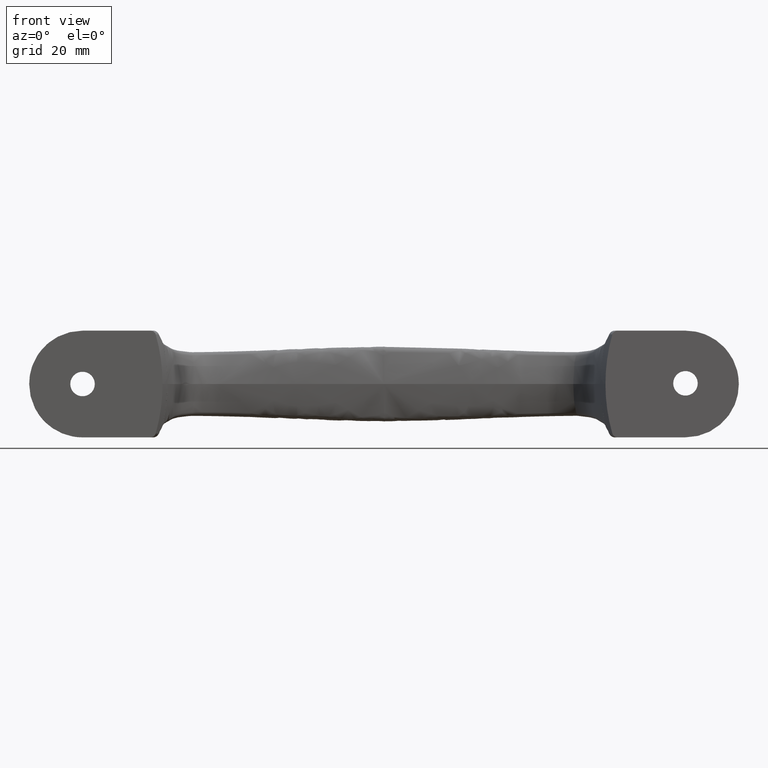
[diagram: clean part render]
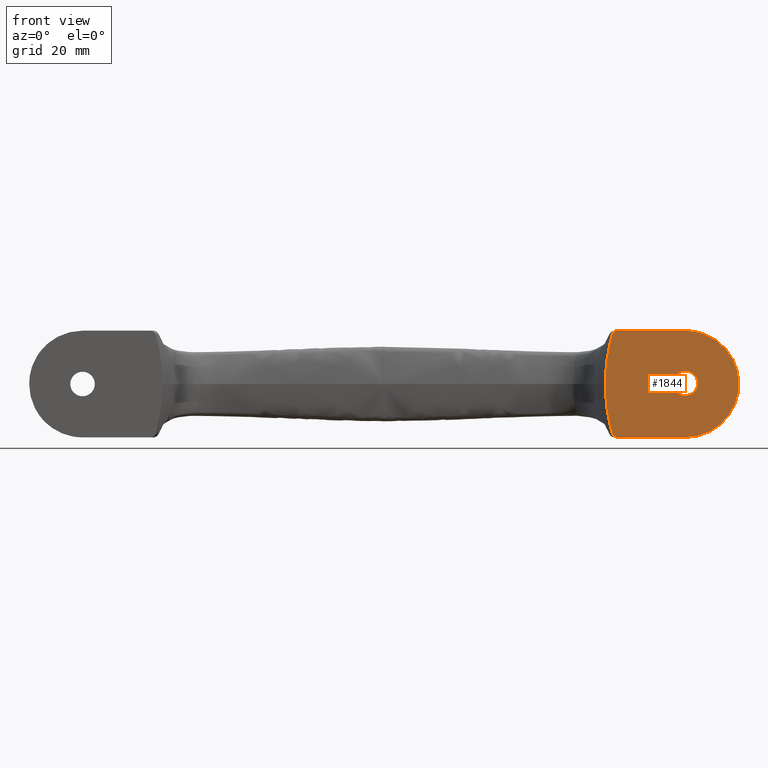
[diagram: same view with one face highlighted and labeled with its STEP entity id]
A machine part, front view. The second image highlights one B-rep face of the part: STEP entity #1844.
In plain terms, the highlighted planar face has unit normal (0, -1, 0).
Its self-contained STEP definition (entity closure, byte-faithful):
#32=ELLIPSE('',#1891,29.5615578210056,25.5190537273212);
#33=ELLIPSE('',#1893,29.5615576358674,25.519053307339);
#45=PLANE('',#1895);
#93=LINE('',#18804,#145);
#94=LINE('',#18830,#146);
#145=VECTOR('',#2024,12.7251197581603);
#146=VECTOR('',#2025,12.7251197063668);
#356=B_SPLINE_CURVE_WITH_KNOTS('',3,(#18792,#18793,#18794,#18795,#18796,
#18797,#18798,#18799,#18800,#18801),.UNSPECIFIED.,.F.,.F.,(4,2,2,2,4),(5.14857552673089E-8,
0.0330055795134464,0.0662812288358875,0.0991402675598314,0.145985234129523),
 .UNSPECIFIED.);
#357=B_SPLINE_CURVE_WITH_KNOTS('',3,(#18806,#18807,#18808,#18809,#18810,
#18811,#18812,#18813,#18814,#18815,#18816),.UNSPECIFIED.,.F.,.F.,(4,1,1,
1,1,1,1,1,4),(0.,0.214285714285714,0.32142857142857,0.428571428571431,0.535714285714287,
0.642857142857144,0.75,0.857142857142858,1.),.UNSPECIFIED.);
#358=B_SPLINE_CURVE_WITH_KNOTS('',3,(#18818,#18819,#18820,#18821,#18822,
#18823,#18824,#18825,#18826,#18827,#18828),.UNSPECIFIED.,.F.,.F.,(4,1,1,
1,1,1,1,1,4),(-1.,-0.857142857142858,-0.75,-0.642857142857144,-0.535714285714287,
-0.428571428571431,-0.32142857142857,-0.214285714285714,0.),
 .UNSPECIFIED.);
#359=B_SPLINE_CURVE_WITH_KNOTS('',3,(#18831,#18832,#18833,#18834,#18835,
#18836,#18837,#18838,#18839,#18840),.UNSPECIFIED.,.F.,.F.,(4,2,2,2,4),(-0.145974817483794,
-0.0992012663618286,-0.0663909209644217,-0.0330590076231549,-3.23906693688869E-8),
 .UNSPECIFIED.);
#458=FACE_BOUND('',#648,.T.);
#544=FACE_OUTER_BOUND('',#647,.T.);
#647=EDGE_LOOP('',(#1699,#1700,#1701,#1702,#1703,#1704,#1705,#1706));
#648=EDGE_LOOP('',(#1707));
#664=CIRCLE('',#1866,2.3);
#672=VERTEX_POINT('',#2052);
#849=VERTEX_POINT('',#18072);
#850=VERTEX_POINT('',#18074);
#853=VERTEX_POINT('',#18284);
#861=VERTEX_POINT('',#18790);
#862=VERTEX_POINT('',#18803);
#863=VERTEX_POINT('',#18805);
#864=VERTEX_POINT('',#18817);
#865=VERTEX_POINT('',#18829);
#877=EDGE_CURVE('',#672,#672,#664,.T.);
#1125=EDGE_CURVE('',#850,#849,#32,.T.);
#1131=EDGE_CURVE('',#850,#853,#33,.T.);
#1146=EDGE_CURVE('',#849,#861,#356,.T.);
#1147=EDGE_CURVE('',#861,#862,#93,.T.);
#1148=EDGE_CURVE('',#862,#863,#357,.T.);
#1149=EDGE_CURVE('',#863,#864,#358,.T.);
#1150=EDGE_CURVE('',#864,#865,#94,.T.);
#1151=EDGE_CURVE('',#865,#853,#359,.T.);
#1699=ORIENTED_EDGE('',*,*,#1147,.T.);
#1700=ORIENTED_EDGE('',*,*,#1148,.T.);
#1701=ORIENTED_EDGE('',*,*,#1149,.T.);
#1702=ORIENTED_EDGE('',*,*,#1150,.T.);
#1703=ORIENTED_EDGE('',*,*,#1151,.T.);
#1704=ORIENTED_EDGE('',*,*,#1131,.F.);
#1705=ORIENTED_EDGE('',*,*,#1125,.T.);
#1706=ORIENTED_EDGE('',*,*,#1146,.T.);
#1707=ORIENTED_EDGE('',*,*,#877,.T.);
#1844=ADVANCED_FACE('',(#544,#458),#45,.T.);
#1866=AXIS2_PLACEMENT_3D('',#2053,#1919,#1920);
#1891=AXIS2_PLACEMENT_3D('',#18075,#2006,#2007);
#1893=AXIS2_PLACEMENT_3D('',#18285,#2014,#2015);
#1895=AXIS2_PLACEMENT_3D('',#18802,#2022,#2023);
#1919=DIRECTION('center_axis',(0.,1.,0.));
#1920=DIRECTION('ref_axis',(0.999999395314834,0.,0.00109971358366082));
#2006=DIRECTION('center_axis',(2.35911500811215E-7,-0.999999999999972,9.96696049563444E-9));
#2007=DIRECTION('ref_axis',(0.166289917660092,2.94015144835846E-8,-0.986076905360124));
#2014=DIRECTION('center_axis',(-2.47996674972633E-7,0.999999999999969,1.02254181495694E-8));
#2015=DIRECTION('ref_axis',(0.166289926806546,3.11563002602984E-8,0.986076903817685));
#2022=DIRECTION('center_axis',(0.,-1.,0.));
#2023=DIRECTION('ref_axis',(0.,0.,-1.));
#2024=DIRECTION('',(1.,0.,0.));
#2025=DIRECTION('',(-1.,0.,0.));
#2052=CARTESIAN_POINT('',(504.199939301945,-76.5,0.121738293711254));
#2053=CARTESIAN_POINT('Origin',(506.499937911169,-76.5,0.124267634953673));
#18072=CARTESIAN_POINT('',(492.783751759941,-76.500000008786,-9.26472067671059));
#18074=CARTESIAN_POINT('',(491.500000019,-76.4999999954894,-3.70074341541719E-16));
#18075=CARTESIAN_POINT('Origin',(517.1394085718,-76.4999939655612,-1.42396205986112));
#18284=CARTESIAN_POINT('',(492.783751704641,-76.499999999996,9.26472049390811));
#18285=CARTESIAN_POINT('Origin',(517.139408172655,-76.4999936560726,1.42396222523859));
#18790=CARTESIAN_POINT('',(493.774880344846,-76.4999999863992,-10.0000000005399));
#18792=CARTESIAN_POINT('Ctrl Pts',(492.78375076542,-76.5,-9.26472095748816));
#18793=CARTESIAN_POINT('Ctrl Pts',(492.813643474702,-76.5,-9.37060163275533));
#18794=CARTESIAN_POINT('Ctrl Pts',(492.861804974489,-76.5,-9.47113240405375));
#18795=CARTESIAN_POINT('Ctrl Pts',(492.988251381126,-76.5,-9.6523819862497));
#18796=CARTESIAN_POINT('Ctrl Pts',(493.065637967213,-76.5,-9.73152889542572));
#18797=CARTESIAN_POINT('Ctrl Pts',(493.244475634028,-76.5,-9.86261191272683));
#18798=CARTESIAN_POINT('Ctrl Pts',(493.343855280524,-76.5,-9.91359551340226));
#18799=CARTESIAN_POINT('Ctrl Pts',(493.597825042394,-76.5,-9.99695938045431));
#18800=CARTESIAN_POINT('Ctrl Pts',(493.682339653605,-76.5,-9.99998530698603));
#18801=CARTESIAN_POINT('Ctrl Pts',(493.774880344846,-76.5,-10.0000000011623));
#18802=CARTESIAN_POINT('Origin',(491.350000024,-76.5,10.));
#18803=CARTESIAN_POINT('',(506.500000103007,-76.5,-9.99999999999972));
#18804=CARTESIAN_POINT('',(504.000000012,-76.5,-10.));
#18805=CARTESIAN_POINT('',(516.5,-76.5,0.));
#18806=CARTESIAN_POINT('Ctrl Pts',(506.500000102999,-76.5,-9.99999999999943));
#18807=CARTESIAN_POINT('Ctrl Pts',(507.621960594,-76.5,-9.999993812));
#18808=CARTESIAN_POINT('Ctrl Pts',(509.304517749,-76.5,-9.713408663));
#18809=CARTESIAN_POINT('Ctrl Pts',(511.360054864,-76.5,-8.793611509));
#18810=CARTESIAN_POINT('Ctrl Pts',(512.764371903,-76.5,-7.855277947));
#18811=CARTESIAN_POINT('Ctrl Pts',(513.991670649,-76.5,-6.694969462));
#18812=CARTESIAN_POINT('Ctrl Pts',(515.007270023,-76.5,-5.345474932));
#18813=CARTESIAN_POINT('Ctrl Pts',(515.78247128,-76.5,-3.844928138));
#18814=CARTESIAN_POINT('Ctrl Pts',(516.352357417,-76.5,-2.05693187));
#18815=CARTESIAN_POINT('Ctrl Pts',(516.499995875,-76.5,-0.747973729));
#18816=CARTESIAN_POINT('Ctrl Pts',(516.5,-76.5,0.));
#18817=CARTESIAN_POINT('',(506.500000051213,-76.5,9.99999999999986));
#18818=CARTESIAN_POINT('Ctrl Pts',(516.5,-76.5,0.));
#18819=CARTESIAN_POINT('Ctrl Pts',(516.499995875,-76.5,0.747973729));
#18820=CARTESIAN_POINT('Ctrl Pts',(516.352357417,-76.5,2.05693187));
#18821=CARTESIAN_POINT('Ctrl Pts',(515.78247128,-76.5,3.844928138));
#18822=CARTESIAN_POINT('Ctrl Pts',(515.007270023,-76.5,5.345474932));
#18823=CARTESIAN_POINT('Ctrl Pts',(513.991670649,-76.5,6.694969462));
#18824=CARTESIAN_POINT('Ctrl Pts',(512.764371903,-76.5,7.855277947));
#18825=CARTESIAN_POINT('Ctrl Pts',(511.360054864,-76.5,8.793611509));
#18826=CARTESIAN_POINT('Ctrl Pts',(509.304517749,-76.5,9.713408663));
#18827=CARTESIAN_POINT('Ctrl Pts',(507.621960594,-76.5,9.999993812));
#18828=CARTESIAN_POINT('Ctrl Pts',(506.500000051211,-76.5,9.99999999999972));
#18829=CARTESIAN_POINT('',(493.774880344846,-76.4999999863992,10.0000000005399));
#18830=CARTESIAN_POINT('',(504.000000012,-76.5,10.));
#18831=CARTESIAN_POINT('Ctrl Pts',(493.774880344846,-76.5,10.0000000011623));
#18832=CARTESIAN_POINT('Ctrl Pts',(493.682489636546,-76.5,9.99998533080124));
#18833=CARTESIAN_POINT('Ctrl Pts',(493.598116057497,-76.5,9.99696932850686));
#18834=CARTESIAN_POINT('Ctrl Pts',(493.34452018208,-76.5,9.91387354148688));
#18835=CARTESIAN_POINT('Ctrl Pts',(493.245267232339,-76.4999999999999,9.86304942866938));
#18836=CARTESIAN_POINT('Ctrl Pts',(493.066296494715,-76.4999999999999,9.73215515059102));
#18837=CARTESIAN_POINT('Ctrl Pts',(492.988713014748,-76.5,9.65294046891129));
#18838=CARTESIAN_POINT('Ctrl Pts',(492.861960922553,-76.5,9.47145783087117));
#18839=CARTESIAN_POINT('Ctrl Pts',(492.813691804203,-76.5,9.37077289820041));
#18840=CARTESIAN_POINT('Ctrl Pts',(492.783750713538,-76.5,9.2647207737207));